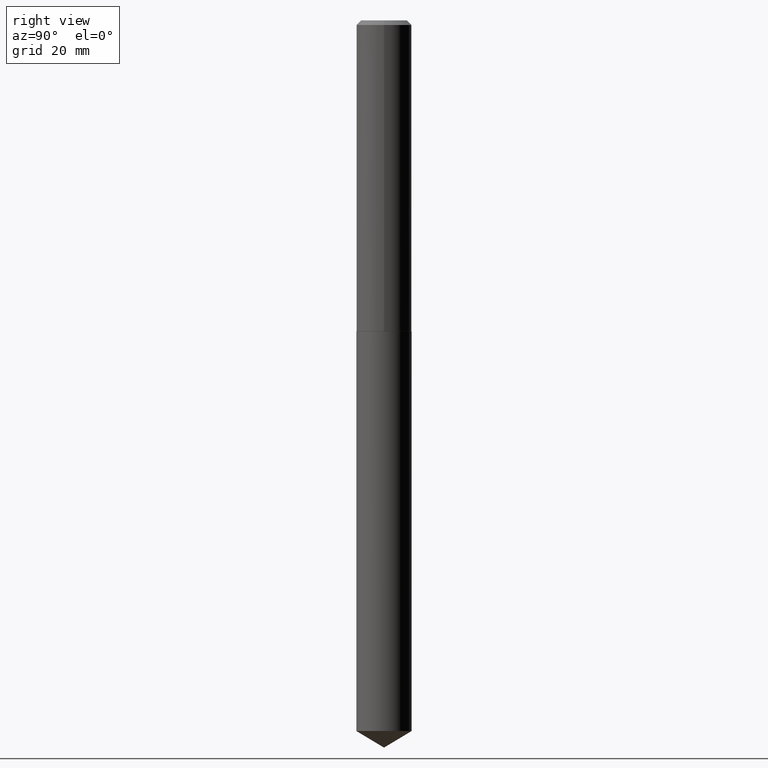
[diagram: clean part render]
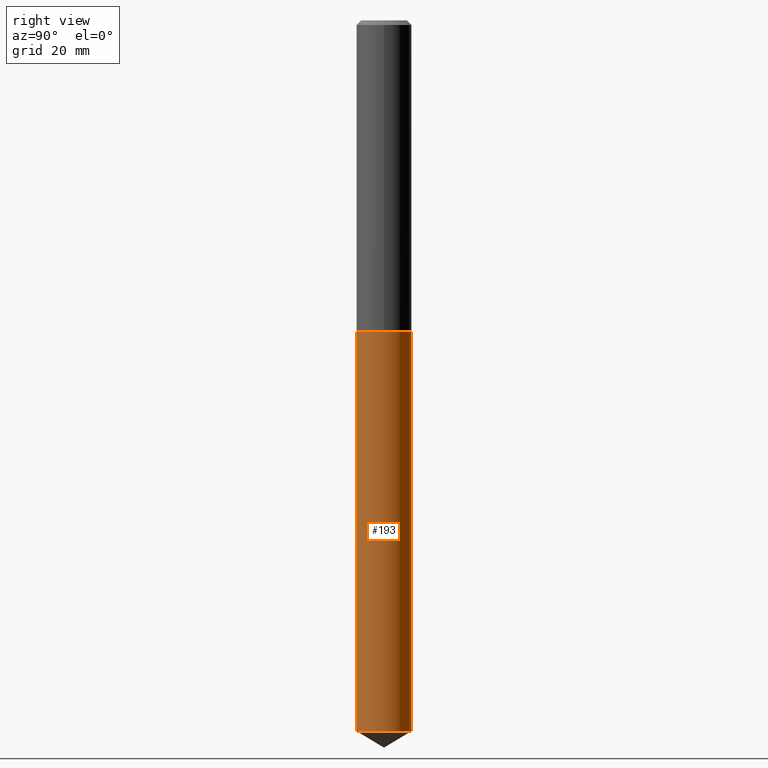
[diagram: same view with one face highlighted and labeled with its STEP entity id]
A machine part, right view. The second image highlights one B-rep face of the part: STEP entity #193.
In plain terms, the highlighted cylindrical surface (edge-blend (fillet) strip) has radius 4.7498 mm, axis along (-0, 0, 1).
Its self-contained STEP definition (entity closure, byte-faithful):
#6 = VERTEX_POINT ( 'NONE', #113 ) ;
#14 = ORIENTED_EDGE ( 'NONE', *, *, #146, .T. ) ;
#20 = CARTESIAN_POINT ( 'NONE',  ( -1.305814020727214264E-15, -0.1870000000000167917, -4.808939064241846140 ) ) ;
#27 = VERTEX_POINT ( 'NONE', #83 ) ;
#28 = LINE ( 'NONE', #379, #302 ) ;
#59 = FACE_OUTER_BOUND ( 'NONE', #260, .T. ) ;
#70 = EDGE_CURVE ( 'NONE', #182, #196, #28, .T. ) ;
#83 = CARTESIAN_POINT ( 'NONE',  ( 1.328714915871505674E-15, 0.1869999999999926721, -2.105300000000000615 ) ) ;
#113 = CARTESIAN_POINT ( 'NONE',  ( 1.328714915871504687E-15, 0.1869999999999832074, -4.808939064241847028 ) ) ;
#114 = ORIENTED_EDGE ( 'NONE', *, *, #133, .T. ) ;
#118 = VECTOR ( 'NONE', #206, 39.37007874015748143 ) ;
#120 = DIRECTION ( 'NONE',  ( -2.445404089440668172E-29, 3.491574016904672827E-15, 1.000000000000000000 ) ) ;
#122 = CARTESIAN_POINT ( 'NONE',  ( 1.175993550173012053E-28, -1.679057157046176754E-14, -4.808939064241846140 ) ) ;
#127 = DIRECTION ( 'NONE',  ( -2.445404089440668172E-29, 3.491574016904672827E-15, 1.000000000000000000 ) ) ;
#133 = EDGE_CURVE ( 'NONE', #182, #6, #191, .T. ) ;
#141 = AXIS2_PLACEMENT_3D ( 'NONE', #183, #120, #266 ) ;
#146 = EDGE_CURVE ( 'NONE', #6, #27, #291, .T. ) ;
#174 = ORIENTED_EDGE ( 'NONE', *, *, #70, .F. ) ;
#182 = VERTEX_POINT ( 'NONE', #20 ) ;
#183 = CARTESIAN_POINT ( 'NONE',  ( 5.148445477661568531E-29, -7.350615662666475594E-15, -2.105300000000000171 ) ) ;
#191 = CIRCLE ( 'NONE', #210, 0.1869999999999999996 ) ;
#193 = ADVANCED_FACE ( 'NONE', ( #59 ), #237, .T. ) ;
#194 = AXIS2_PLACEMENT_3D ( 'NONE', #383, #127, #336 ) ;
#196 = VERTEX_POINT ( 'NONE', #347 ) ;
#206 = DIRECTION ( 'NONE',  ( -2.445404089440668172E-29, 3.491574016904672432E-15, 1.000000000000000000 ) ) ;
#207 = CARTESIAN_POINT ( 'NONE',  ( 1.328714915871438620E-15, 0.1869999999999926721, -2.105300000000000615 ) ) ;
#210 = AXIS2_PLACEMENT_3D ( 'NONE', #122, #321, #292 ) ;
#230 = ORIENTED_EDGE ( 'NONE', *, *, #296, .F. ) ;
#237 = CYLINDRICAL_SURFACE ( 'NONE', #141, 0.1869999999999999996 ) ;
#260 = EDGE_LOOP ( 'NONE', ( #114, #14, #230, #174 ) ) ;
#266 = DIRECTION ( 'NONE',  ( -6.982962677686266711E-15, -1.000000000000000000, 2.921762560068730595E-15 ) ) ;
#291 = LINE ( 'NONE', #207, #118 ) ;
#292 = DIRECTION ( 'NONE',  ( -6.982962677686266711E-15, -1.000000000000000000, 2.921762560068730595E-15 ) ) ;
#296 = EDGE_CURVE ( 'NONE', #196, #27, #298, .T. ) ;
#298 = CIRCLE ( 'NONE', #194, 0.1869999999999999996 ) ;
#302 = VECTOR ( 'NONE', #319, 39.37007874015748143 ) ;
#319 = DIRECTION ( 'NONE',  ( -2.445404089440668172E-29, 3.491574016904672432E-15, 1.000000000000000000 ) ) ;
#321 = DIRECTION ( 'NONE',  ( -2.445404089440668172E-29, 3.491574016904672827E-15, 1.000000000000000000 ) ) ;
#336 = DIRECTION ( 'NONE',  ( -6.982962677686266711E-15, -1.000000000000000000, 2.921762560068730595E-15 ) ) ;
#347 = CARTESIAN_POINT ( 'NONE',  ( -1.305814020727280331E-15, -0.1870000000000073548, -2.105299999999999727 ) ) ;
#379 = CARTESIAN_POINT ( 'NONE',  ( -1.305814020727280331E-15, -0.1870000000000073548, -2.105299999999999727 ) ) ;
#383 = CARTESIAN_POINT ( 'NONE',  ( 5.148445477661568531E-29, -7.350615662666475594E-15, -2.105300000000000171 ) ) ;